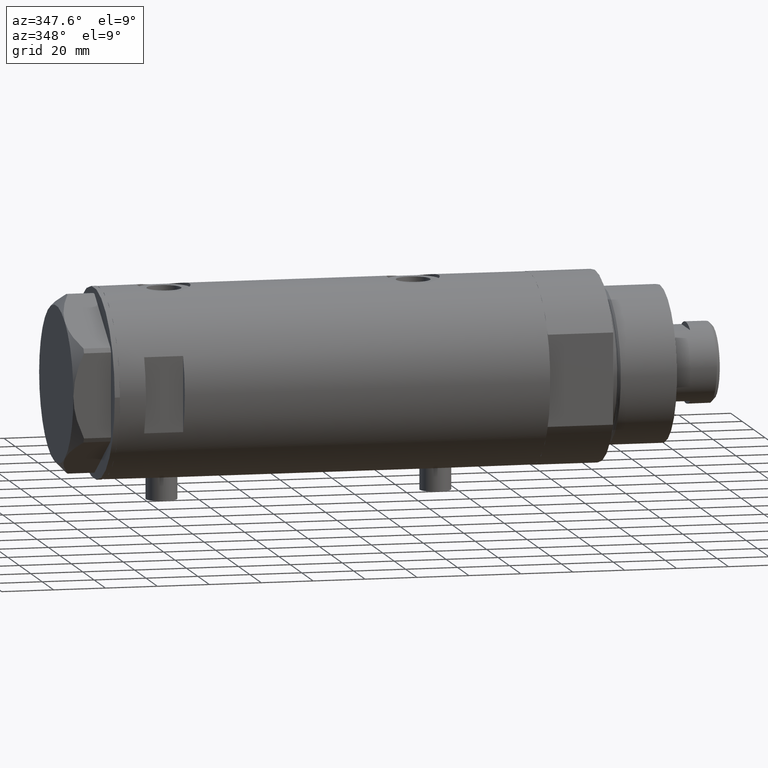
[diagram: clean part render]
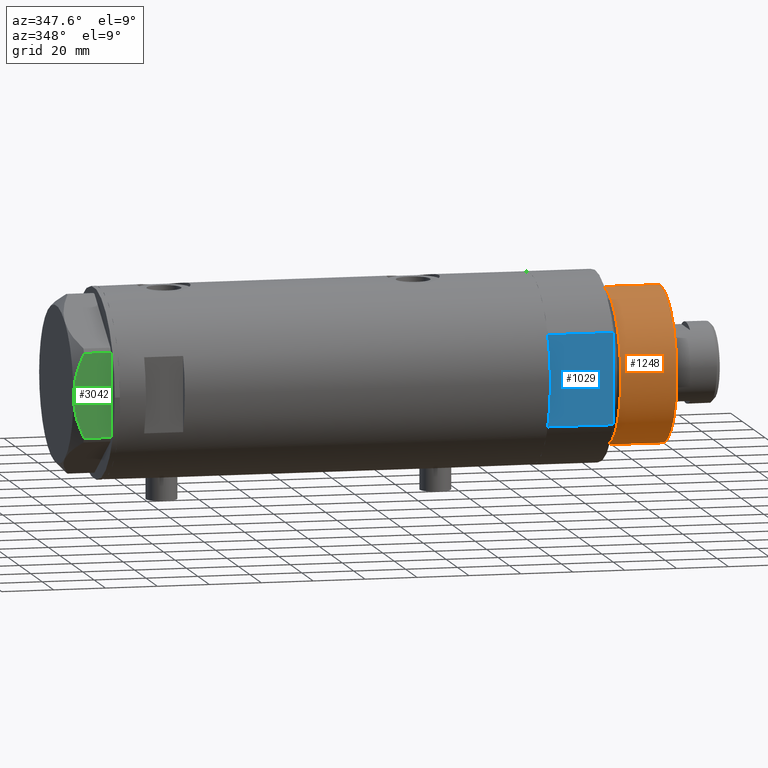
[diagram: same view with three faces highlighted in distinct colors, each labeled with its STEP entity id]
A machine part, auxiliary view with three faces highlighted in distinct colors.
Their STEP definitions:

[orange] entity #1248 — the highlighted cylindrical surface (partial cylindrical patch) has radius 30 mm, axis along (-1, -0, 0).
#7 = EDGE_CURVE ( 'NONE', #309, #20, #551, .T. ) ;
#20 = VERTEX_POINT ( 'NONE', #1805 ) ;
#211 = ORIENTED_EDGE ( 'NONE', *, *, #1142, .T. ) ;
#266 = DIRECTION ( 'NONE',  ( -0.000000000000000000, -0.000000000000000000, 1.000000000000000000 ) ) ;
#309 = VERTEX_POINT ( 'NONE', #4471 ) ;
#551 = CIRCLE ( 'NONE', #626, 30.00000000000000000 ) ;
#626 = AXIS2_PLACEMENT_3D ( 'NONE', #1479, #3900, #1417 ) ;
#667 = ORIENTED_EDGE ( 'NONE', *, *, #3474, .F. ) ;
#961 = DIRECTION ( 'NONE',  ( -1.000000000000000000, 0.000000000000000000, 0.000000000000000000 ) ) ;
#1142 = EDGE_CURVE ( 'NONE', #309, #2948, #2291, .T. ) ;
#1205 = DIRECTION ( 'NONE',  ( -0.000000000000000000, -0.000000000000000000, -1.000000000000000000 ) ) ;
#1248 = ADVANCED_FACE ( 'NONE', ( #1636 ), #2744, .T. ) ;
#1336 = DIRECTION ( 'NONE',  ( 1.000000000000000000, 0.000000000000000000, 0.000000000000000000 ) ) ;
#1366 = AXIS2_PLACEMENT_3D ( 'NONE', #4068, #3096, #961 ) ;
#1417 = DIRECTION ( 'NONE',  ( 1.000000000000000000, 0.000000000000000000, 0.000000000000000000 ) ) ;
#1437 = VECTOR ( 'NONE', #3223, 1000.000000000000000 ) ;
#1479 = CARTESIAN_POINT ( 'NONE',  ( 0.000000000000000000, 0.000000000000000000, 50.19999999999999574 ) ) ;
#1524 = VERTEX_POINT ( 'NONE', #2415 ) ;
#1636 = FACE_OUTER_BOUND ( 'NONE', #2682, .T. ) ;
#1805 = CARTESIAN_POINT ( 'NONE',  ( 30.00000000000000000, 3.673940397442058389E-15, 50.19999999999999574 ) ) ;
#1846 = CARTESIAN_POINT ( 'NONE',  ( 30.00000000000000000, 3.673940397442058389E-15, 50.19999999999999574 ) ) ;
#1949 = AXIS2_PLACEMENT_3D ( 'NONE', #3620, #266, #1336 ) ;
#2072 = CARTESIAN_POINT ( 'NONE',  ( -30.00000000000000000, 0.000000000000000000, 28.57384048104054486 ) ) ;
#2099 = CIRCLE ( 'NONE', #1949, 30.00000000000000000 ) ;
#2291 = LINE ( 'NONE', #3711, #4043 ) ;
#2415 = CARTESIAN_POINT ( 'NONE',  ( 30.00000000000000000, 3.673940397442058389E-15, 28.57384048104054486 ) ) ;
#2682 = EDGE_LOOP ( 'NONE', ( #667, #3309, #211, #3005 ) ) ;
#2744 = CYLINDRICAL_SURFACE ( 'NONE', #1366, 30.00000000000000000 ) ;
#2948 = VERTEX_POINT ( 'NONE', #2072 ) ;
#3005 = ORIENTED_EDGE ( 'NONE', *, *, #3506, .T. ) ;
#3096 = DIRECTION ( 'NONE',  ( -0.000000000000000000, -0.000000000000000000, -1.000000000000000000 ) ) ;
#3223 = DIRECTION ( 'NONE',  ( -0.000000000000000000, -0.000000000000000000, -1.000000000000000000 ) ) ;
#3309 = ORIENTED_EDGE ( 'NONE', *, *, #7, .F. ) ;
#3474 = EDGE_CURVE ( 'NONE', #20, #1524, #4372, .T. ) ;
#3506 = EDGE_CURVE ( 'NONE', #2948, #1524, #2099, .T. ) ;
#3620 = CARTESIAN_POINT ( 'NONE',  ( 0.000000000000000000, 0.000000000000000000, 28.57384048104054486 ) ) ;
#3711 = CARTESIAN_POINT ( 'NONE',  ( -30.00000000000000000, 0.000000000000000000, 50.19999999999999574 ) ) ;
#3900 = DIRECTION ( 'NONE',  ( 0.000000000000000000, 0.000000000000000000, 1.000000000000000000 ) ) ;
#4043 = VECTOR ( 'NONE', #1205, 1000.000000000000000 ) ;
#4068 = CARTESIAN_POINT ( 'NONE',  ( 0.000000000000000000, 0.000000000000000000, 50.19999999999999574 ) ) ;
#4372 = LINE ( 'NONE', #1846, #1437 ) ;
#4471 = CARTESIAN_POINT ( 'NONE',  ( -30.00000000000000000, 0.000000000000000000, 50.19999999999999574 ) ) ;

[blue] entity #1029 — the highlighted planar face has unit normal (-0, 1, 0).
#187 = EDGE_CURVE ( 'NONE', #749, #1399, #3372, .T. ) ;
#532 = CARTESIAN_POINT ( 'NONE',  ( -17.55704986607943141, -32.00000000000000000, 25.19999999999999929 ) ) ;
#572 = VECTOR ( 'NONE', #2680, 1000.000000000000000 ) ;
#708 = CARTESIAN_POINT ( 'NONE',  ( -17.55704986607943141, -32.00000000000000000, 0.000000000000000000 ) ) ;
#749 = VERTEX_POINT ( 'NONE', #2428 ) ;
#820 = ORIENTED_EDGE ( 'NONE', *, *, #2081, .T. ) ;
#905 = CARTESIAN_POINT ( 'NONE',  ( -17.55704986607943141, -32.00000000000000000, 0.000000000000000000 ) ) ;
#969 = LINE ( 'NONE', #4396, #572 ) ;
#1029 = ADVANCED_FACE ( 'NONE', ( #3673 ), #1856, .F. ) ;
#1181 = DIRECTION ( 'NONE',  ( -0.000000000000000000, 1.000000000000000000, 0.000000000000000000 ) ) ;
#1290 = AXIS2_PLACEMENT_3D ( 'NONE', #905, #1181, #4312 ) ;
#1355 = VECTOR ( 'NONE', #4071, 1000.000000000000000 ) ;
#1376 = ORIENTED_EDGE ( 'NONE', *, *, #2583, .F. ) ;
#1399 = VERTEX_POINT ( 'NONE', #4181 ) ;
#1821 = LINE ( 'NONE', #708, #2951 ) ;
#1856 = PLANE ( 'NONE',  #1290 ) ;
#1891 = CARTESIAN_POINT ( 'NONE',  ( 17.55704986607943496, -32.00000000000000000, 25.19999999999999929 ) ) ;
#1938 = EDGE_CURVE ( 'NONE', #3956, #4465, #969, .T. ) ;
#1953 = ORIENTED_EDGE ( 'NONE', *, *, #2855, .F. ) ;
#1988 = DIRECTION ( 'NONE',  ( -1.000000000000000000, -0.000000000000000000, -0.000000000000000000 ) ) ;
#2081 = EDGE_CURVE ( 'NONE', #4465, #1399, #2933, .T. ) ;
#2100 = CARTESIAN_POINT ( 'NONE',  ( 0.000000000000000000, -32.00000000000000000, 0.000000000000000000 ) ) ;
#2200 = EDGE_LOOP ( 'NONE', ( #820, #4378, #1953, #1376, #3112 ) ) ;
#2345 = LINE ( 'NONE', #4152, #4201 ) ;
#2428 = CARTESIAN_POINT ( 'NONE',  ( -17.55704986607943496, -32.00000000000000000, 0.000000000000000000 ) ) ;
#2583 = EDGE_CURVE ( 'NONE', #3956, #4017, #1821, .T. ) ;
#2680 = DIRECTION ( 'NONE',  ( -0.000000000000000000, -0.000000000000000000, 1.000000000000000000 ) ) ;
#2855 = EDGE_CURVE ( 'NONE', #4017, #749, #2345, .T. ) ;
#2933 = LINE ( 'NONE', #532, #3622 ) ;
#2951 = VECTOR ( 'NONE', #3197, 1000.000000000000000 ) ;
#3112 = ORIENTED_EDGE ( 'NONE', *, *, #1938, .T. ) ;
#3197 = DIRECTION ( 'NONE',  ( -1.000000000000000000, -0.000000000000000000, -0.000000000000000000 ) ) ;
#3372 = LINE ( 'NONE', #4025, #1355 ) ;
#3622 = VECTOR ( 'NONE', #1988, 1000.000000000000000 ) ;
#3666 = CARTESIAN_POINT ( 'NONE',  ( 17.55704986607943141, -32.00000000000000000, 0.000000000000000000 ) ) ;
#3673 = FACE_OUTER_BOUND ( 'NONE', #2200, .T. ) ;
#3831 = DIRECTION ( 'NONE',  ( -1.000000000000000000, -0.000000000000000000, -0.000000000000000000 ) ) ;
#3956 = VERTEX_POINT ( 'NONE', #3666 ) ;
#4017 = VERTEX_POINT ( 'NONE', #2100 ) ;
#4025 = CARTESIAN_POINT ( 'NONE',  ( -17.55704986607943141, -32.00000000000000000, 0.000000000000000000 ) ) ;
#4071 = DIRECTION ( 'NONE',  ( -0.000000000000000000, -0.000000000000000000, 1.000000000000000000 ) ) ;
#4152 = CARTESIAN_POINT ( 'NONE',  ( -17.55704986607943141, -32.00000000000000000, 0.000000000000000000 ) ) ;
#4181 = CARTESIAN_POINT ( 'NONE',  ( -17.55704986607943496, -32.00000000000000000, 25.19999999999999929 ) ) ;
#4201 = VECTOR ( 'NONE', #3831, 1000.000000000000000 ) ;
#4312 = DIRECTION ( 'NONE',  ( 0.000000000000000000, -0.000000000000000000, 1.000000000000000000 ) ) ;
#4378 = ORIENTED_EDGE ( 'NONE', *, *, #187, .F. ) ;
#4396 = CARTESIAN_POINT ( 'NONE',  ( 17.55704986607943141, -32.00000000000000000, 0.000000000000000000 ) ) ;
#4465 = VERTEX_POINT ( 'NONE', #1891 ) ;

[green] entity #3042 — the highlighted planar face has unit normal (-0, 1, 0).
#148 = CARTESIAN_POINT ( 'NONE',  ( -29.99999999999999289, -15.56759648729806322, 10.70591879357992227 ) ) ;
#186 = CARTESIAN_POINT ( 'NONE',  ( -29.99999999999999645, -12.97715359595204809, 11.81918444541430624 ) ) ;
#199 = VERTEX_POINT ( 'NONE', #4041 ) ;
#215 = CARTESIAN_POINT ( 'NONE',  ( -30.00000000000000000, -16.20050807568876294, 10.40518423703603901 ) ) ;
#233 = DIRECTION ( 'NONE',  ( 0.000000000000000000, -1.000000000000000000, 0.000000000000000000 ) ) ;
#237 = ORIENTED_EDGE ( 'NONE', *, *, #3894, .F. ) ;
#276 = B_SPLINE_CURVE_WITH_KNOTS ( 'NONE', 3,
 ( #1604, #4304, #1932, #2653, #3297, #1549, #2257, #3318, #463, #186, #2907, #1892, #148, #215 ),
 .UNSPECIFIED., .F., .F.,
 ( 4, 2, 2, 2, 2, 2, 4 ),
 ( 0.06183748343640969869, 0.06393495742991751885, 0.06603243142342535288, 0.07022737941044099319, 0.07442232739745664738, 0.07651980139096448141, 0.07861727538447230157 ),
 .UNSPECIFIED. ) ;
#463 = CARTESIAN_POINT ( 'NONE',  ( -30.00000000000000000, -11.00230860792644982, 12.56933207488871673 ) ) ;
#483 = PLANE ( 'NONE',  #4340 ) ;
#528 = CARTESIAN_POINT ( 'NONE',  ( -30.00000000000000000, 0.000000000000000000, 14.50000000000000000 ) ) ;
#665 = EDGE_CURVE ( 'NONE', #2809, #199, #1595, .T. ) ;
#917 = CARTESIAN_POINT ( 'NONE',  ( -30.00000000000001421, 14.93680064777130312, 11.00564802993687508 ) ) ;
#1056 = DIRECTION ( 'NONE',  ( 0.000000000000000000, 0.000000000000000000, 1.000000000000000000 ) ) ;
#1217 = VECTOR ( 'NONE', #3469, 1000.000000000000000 ) ;
#1281 = CARTESIAN_POINT ( 'NONE',  ( -30.00000000000000000, 11.66725319103952607, 12.31690447555093293 ) ) ;
#1324 = CARTESIAN_POINT ( 'NONE',  ( -30.00000000000000711, 2.830925467268496476, 14.50000000000000533 ) ) ;
#1460 = EDGE_CURVE ( 'NONE', #1667, #2809, #2491, .T. ) ;
#1465 = B_SPLINE_CURVE_WITH_KNOTS ( 'NONE', 3,
 ( #3322, #917, #4093, #1281, #2693, #3299, #3645, #4433, #1324, #528 ),
 .UNSPECIFIED., .F., .F.,
 ( 4, 2, 2, 2, 4 ),
 ( 0.04501738275285960267, 0.04922240792374713014, 0.05132492050919089388, 0.05342743309463465068, 0.06183748343640969869 ),
 .UNSPECIFIED. ) ;
#1549 = CARTESIAN_POINT ( 'NONE',  ( -29.99999999999999289, -5.607365453019637513, 14.01139032121647965 ) ) ;
#1595 = LINE ( 'NONE', #4366, #2598 ) ;
#1604 = CARTESIAN_POINT ( 'NONE',  ( -30.00000000000000000, 0.000000000000000000, 14.50000000000000000 ) ) ;
#1667 = VERTEX_POINT ( 'NONE', #3344 ) ;
#1776 = CARTESIAN_POINT ( 'NONE',  ( -30.00000000000000000, 16.20050807568875584, 0.000000000000000000 ) ) ;
#1820 = VERTEX_POINT ( 'NONE', #3235 ) ;
#1892 = CARTESIAN_POINT ( 'NONE',  ( -29.99999999999999289, -14.92797448277034533, 10.99622797424084553 ) ) ;
#1932 = CARTESIAN_POINT ( 'NONE',  ( -30.00000000000000355, -1.418661615092686290, 14.47469700449902952 ) ) ;
#2088 = VECTOR ( 'NONE', #1056, 1000.000000000000000 ) ;
#2154 = FACE_OUTER_BOUND ( 'NONE', #3306, .T. ) ;
#2198 = DIRECTION ( 'NONE',  ( 1.000000000000000000, 0.000000000000000000, -0.000000000000000000 ) ) ;
#2257 = CARTESIAN_POINT ( 'NONE',  ( -30.00000000000000000, -6.973771051792319042, 13.72753822183687511 ) ) ;
#2304 = ORIENTED_EDGE ( 'NONE', *, *, #2347, .T. ) ;
#2347 = EDGE_CURVE ( 'NONE', #199, #4455, #3896, .T. ) ;
#2491 = LINE ( 'NONE', #2849, #1217 ) ;
#2598 = VECTOR ( 'NONE', #233, 1000.000000000000000 ) ;
#2653 = CARTESIAN_POINT ( 'NONE',  ( -29.99999999999999645, -2.827567415490778835, 14.37523681947611109 ) ) ;
#2693 = CARTESIAN_POINT ( 'NONE',  ( -30.00000000000000355, 10.99748736931232607, 12.55407623651775495 ) ) ;
#2809 = VERTEX_POINT ( 'NONE', #1776 ) ;
#2847 = ORIENTED_EDGE ( 'NONE', *, *, #1460, .T. ) ;
#2849 = CARTESIAN_POINT ( 'NONE',  ( -30.00000000000000000, 16.20050807568875584, 14.50000000000000000 ) ) ;
#2907 = CARTESIAN_POINT ( 'NONE',  ( -29.99999999999999289, -13.63320717147166405, 11.55272916346384804 ) ) ;
#2911 = CARTESIAN_POINT ( 'NONE',  ( -30.00000000000000000, 17.32050807568877460, 14.50000000000000000 ) ) ;
#2970 = ORIENTED_EDGE ( 'NONE', *, *, #3442, .F. ) ;
#3042 = ADVANCED_FACE ( 'NONE', ( #2154 ), #483, .F. ) ;
#3235 = CARTESIAN_POINT ( 'NONE',  ( -30.00000000000000000, 0.000000000000000000, 14.50000000000000000 ) ) ;
#3273 = CARTESIAN_POINT ( 'NONE',  ( -30.00000000000000000, -16.20050807568876294, 10.40518423703603901 ) ) ;
#3297 = CARTESIAN_POINT ( 'NONE',  ( -30.00000000000000000, -3.526431665117130798, 14.30125973663612626 ) ) ;
#3299 = CARTESIAN_POINT ( 'NONE',  ( -30.00000000000000000, 9.655259153795977767, 12.99093232113973606 ) ) ;
#3306 = EDGE_LOOP ( 'NONE', ( #237, #2847, #3354, #2304, #2970 ) ) ;
#3318 = CARTESIAN_POINT ( 'NONE',  ( -29.99999999999999645, -9.671229349009038856, 13.00645148086949554 ) ) ;
#3322 = CARTESIAN_POINT ( 'NONE',  ( -30.00000000000000000, 16.20050807568875584, 10.40518423703603546 ) ) ;
#3344 = CARTESIAN_POINT ( 'NONE',  ( -30.00000000000000000, 16.20050807568875584, 10.40518423703603546 ) ) ;
#3354 = ORIENTED_EDGE ( 'NONE', *, *, #665, .T. ) ;
#3442 = EDGE_CURVE ( 'NONE', #1820, #4455, #276, .T. ) ;
#3469 = DIRECTION ( 'NONE',  ( 0.000000000000000000, 0.000000000000000000, -1.000000000000000000 ) ) ;
#3586 = DIRECTION ( 'NONE',  ( -0.000000000000000000, 0.000000000000000000, -1.000000000000000000 ) ) ;
#3645 = CARTESIAN_POINT ( 'NONE',  ( -30.00000000000000711, 8.981118657900116986, 13.19130745470829247 ) ) ;
#3894 = EDGE_CURVE ( 'NONE', #1667, #1820, #1465, .T. ) ;
#3896 = LINE ( 'NONE', #4150, #2088 ) ;
#4041 = CARTESIAN_POINT ( 'NONE',  ( -30.00000000000000000, -16.20050807568876294, 0.000000000000000000 ) ) ;
#4093 = CARTESIAN_POINT ( 'NONE',  ( -30.00000000000000355, 13.64854889245356695, 11.56384586935411996 ) ) ;
#4150 = CARTESIAN_POINT ( 'NONE',  ( -30.00000000000000000, -16.20050807568876294, 14.50000000000000000 ) ) ;
#4304 = CARTESIAN_POINT ( 'NONE',  ( -30.00000000000000000, -0.7060353153488233557, 14.49999999999999822 ) ) ;
#4340 = AXIS2_PLACEMENT_3D ( 'NONE', #2911, #2198, #3586 ) ;
#4366 = CARTESIAN_POINT ( 'NONE',  ( -30.00000000000000000, 17.32050807568877460, 0.000000000000000000 ) ) ;
#4433 = CARTESIAN_POINT ( 'NONE',  ( -30.00000000000000000, 5.593935073701701732, 14.09487059093540573 ) ) ;
#4455 = VERTEX_POINT ( 'NONE', #3273 ) ;